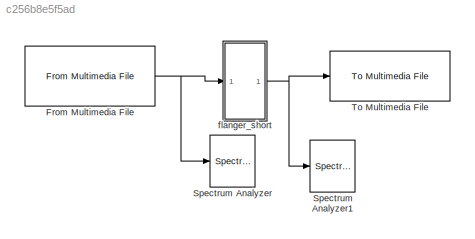
MODEL slx_c256b8e5f5ad
KIND model
CONFIG AbsTol = auto
CONFIG EnableMultiTasking = off
CONFIG FixedStep = auto
CONFIG MaxStep = auto
CONFIG MinStep = auto
CONFIG RelTol = 1e-3
CONFIG SampleTimeConstraint = Unconstrained
CONFIG Solver = FixedStepDiscrete
CONFIG SolverName = FixedStepDiscrete
CONFIG StartTime = 0.0
CONFIG StopTime = 10.0
BLOCK [Reference] From Multimedia File  REF=dspvision/From Multimedia File
  Ports = [0, 1]
  SourceBlock = dspvision/From Multimedia File
  SourceProductBaseCode = VP
  SourceProductName = Computer Vision System Toolbox
  SourceType = From Multimedia File
BLOCK [SpectrumAnalyzer] Spectrum Analyzer
  Commented = on
  Ports = [1]
  ScopeSpecificationString = spbscopes.SpectrumAnalyzerBlockCfg('CurrentConfiguration', extmgr.ConfigurationSet(extmgr.Configuration('Core','General UI',true),extmgr.Configuration('Core','Source UI',true),extmgr.Configuration('Sources','WiredSimulink',true),extmgr.Configuration('Visuals','Spectrum',true,'AxesProperties',struct('Color',{[0 0 0],[0 0 0]},'XColor',{[0.686274509803922 0.686274509803922 0.686274509803922],[0.68627...<+1718ch>
BLOCK [SpectrumAnalyzer] Spectrum Analyzer1
  Commented = on
  Ports = [1]
  ScopeSpecificationString = spbscopes.SpectrumAnalyzerBlockCfg('CurrentConfiguration', extmgr.ConfigurationSet(extmgr.Configuration('Core','General UI',true),extmgr.Configuration('Core','Source UI',true),extmgr.Configuration('Sources','WiredSimulink',true),extmgr.Configuration('Visuals','Spectrum',true,'AxesProperties',struct('Color',{[0 0 0],[0 0 0]},'XColor',{[0.686274509803922 0.686274509803922 0.686274509803922],[0.68627...<+1722ch>
BLOCK [Reference] To Multimedia File  REF=dspvision/To Multimedia File
  Ports = [1]
  SourceBlock = dspvision/To Multimedia File
  SourceProductBaseCode = VP
  SourceProductName = Computer Vision System Toolbox
  SourceType = To Multimedia File
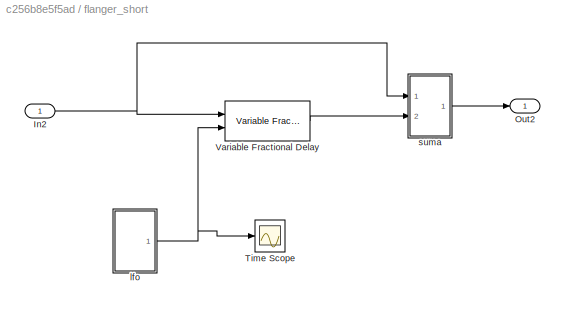
BLOCK [SubSystem] flanger_short 
  Ports = [1, 1]
  RequestExecContextInheritance = off
BLOCK [Inport] flanger_short /In2
  IconDisplay = Port number
  OutDataTypeStr = int16
  SampleTime = 1/44100
BLOCK [Outport] flanger_short /Out2
  IconDisplay = Port number
BLOCK [Scope] flanger_short /Time Scope
  DefaultConfigurationName = spbscopes.TimeScopeBlockCfg
  Floating = off
  NumInputPorts = 1
  Ports = [1]
  ScopeSpecificationString = spbscopes.TimeScopeBlockCfg('CurrentConfiguration', extmgr.ConfigurationSet(extmgr.Configuration('Core','General UI',true),extmgr.Configuration('Core','Source UI',true),extmgr.Configuration('Sources','WiredSimulink',true),extmgr.Configuration('Visuals','Time Domain',true,'DisplayPropertyDefaults',struct('MinYLimReal','14.78753','MaxYLimReal','45.78637','YLabelReal','Amplitude','MinYLimMag','14.787...<+1372ch>
  UserDataPersistent = on
BLOCK [Reference] flanger_short /Variable Fractional Delay  REF=dspsigops/Variable
Fractional Delay
  Ports = [2, 1]
  SourceBlock = dspsigops/Variable\nFractional Delay
  SourceProductBaseCode = DS
  SourceProductName = DSP System Toolbox
  SourceType = Variable Fractional Delay
  UserDataPersistent = on
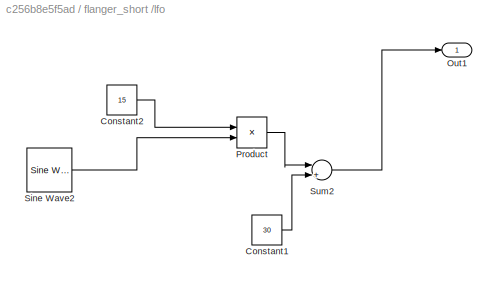
BLOCK [SubSystem] flanger_short /lfo
  Ports = [0, 1]
  RequestExecContextInheritance = off
BLOCK [Constant] flanger_short /lfo/Constant1
  OutDataTypeStr = fixdt(1,8)
  Value = 30
BLOCK [Constant] flanger_short /lfo/Constant2
  OutDataTypeStr = fixdt(1,8)
  Value = 15
BLOCK [Outport] flanger_short /lfo/Out1
  IconDisplay = Port number
BLOCK [Product] flanger_short /lfo/Product
  InputSameDT = off
  OutDataTypeStr = fixdt(1,16)
  OutMax = [15]
  OutMin = [-15]
  Ports = [2, 1]
  RndMeth = Floor
BLOCK [Reference] flanger_short /lfo/Sine Wave2  REF=dspsrcs4/Sine Wave
  Ports = [0, 1]
  SourceBlock = dspsrcs4/Sine Wave
  SourceProductBaseCode = DS
  SourceProductName = DSP System Toolbox
  SourceType = Sine Wave
BLOCK [Sum] flanger_short /lfo/Sum2
  AccumDataTypeStr = fixdt(1,16,0)
  InputSameDT = off
  Inputs = |++
  OutDataTypeStr = Inherit: Inherit via internal rule
  Ports = [2, 1]
  RndMeth = Ceiling
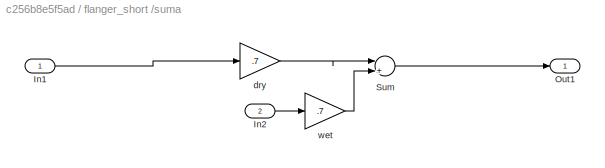
BLOCK [SubSystem] flanger_short /suma 
  Ports = [2, 1]
  RequestExecContextInheritance = off
BLOCK [Inport] flanger_short /suma /In1
  IconDisplay = Port number
BLOCK [Inport] flanger_short /suma /In2
  IconDisplay = Port number
  Port = 2
BLOCK [Outport] flanger_short /suma /Out1
  IconDisplay = Port number
BLOCK [Sum] flanger_short /suma /Sum
  AccumDataTypeStr = int16
  InputSameDT = off
  Inputs = |++
  OutDataTypeStr = Inherit: Inherit via internal rule
  Ports = [2, 1]
  SaturateOnIntegerOverflow = off
BLOCK [Gain] flanger_short /suma /dry
  Gain = .7
  OutDataTypeStr = int16
  ParamDataTypeStr = Inherit: Inherit via internal rule
  SaturateOnIntegerOverflow = off
BLOCK [Gain] flanger_short /suma /wet
  Gain = .7
  OutDataTypeStr = int16
  ParamDataTypeStr = Inherit: Inherit via internal rule
  SaturateOnIntegerOverflow = off
NET From Multimedia File:1 -> Spectrum Analyzer:1, flanger_short :1
NET flanger_short /In2:1 -> flanger_short /Variable Fractional Delay:1, flanger_short /suma :1
LINE flanger_short /Variable Fractional Delay:1 -> flanger_short /suma :2
LINE flanger_short /lfo/Constant1:1 -> flanger_short /lfo/Sum2:2
LINE flanger_short /lfo/Constant2:1 -> flanger_short /lfo/Product:1
LINE flanger_short /lfo/Product:1 -> flanger_short /lfo/Sum2:1
LINE flanger_short /lfo/Sine Wave2:1 -> flanger_short /lfo/Product:2
LINE flanger_short /lfo/Sum2:1 -> flanger_short /lfo/Out1:1
NET flanger_short /lfo:1 -> flanger_short /Time Scope:1, flanger_short /Variable Fractional Delay:2
LINE flanger_short /suma /In1:1 -> flanger_short /suma /dry:1
LINE flanger_short /suma /In2:1 -> flanger_short /suma /wet:1
LINE flanger_short /suma /Sum:1 -> flanger_short /suma /Out1:1
LINE flanger_short /suma /dry:1 -> flanger_short /suma /Sum:1
LINE flanger_short /suma /wet:1 -> flanger_short /suma /Sum:2
LINE flanger_short /suma :1 -> flanger_short /Out2:1
NET flanger_short :1 -> Spectrum Analyzer1:1, To Multimedia File:1
note: NET lines group one-source signal fan-out (src -> all destinations, sorted); 1:1 wires keep LINE
